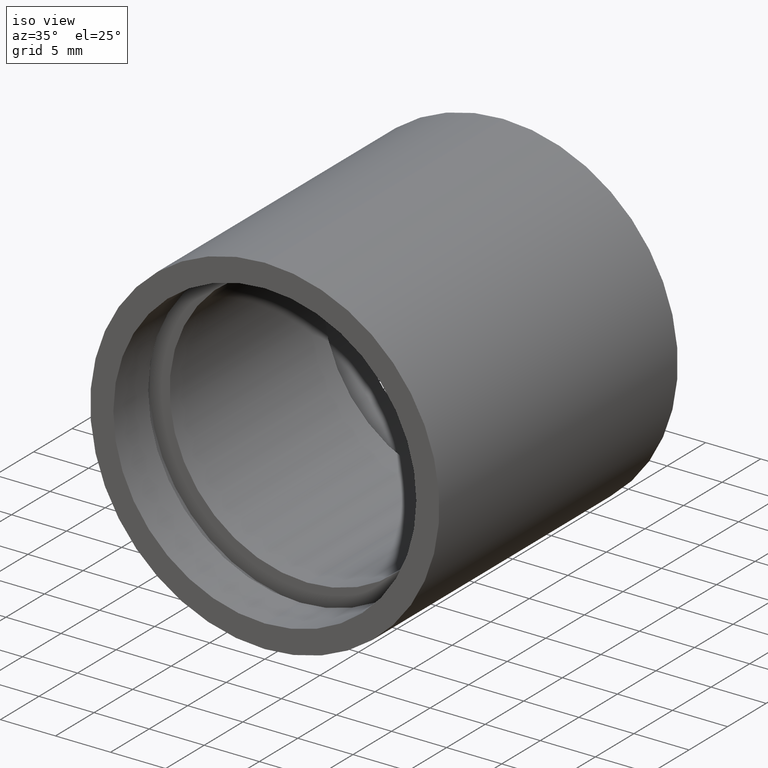
[diagram: clean part render]
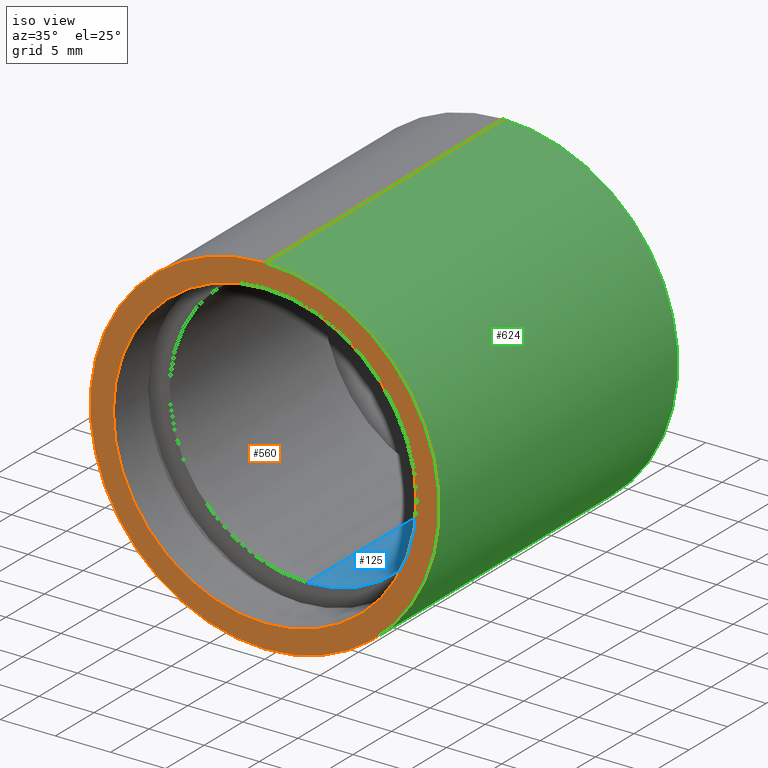
[diagram: same view with three faces highlighted in distinct colors, each labeled with its STEP entity id]
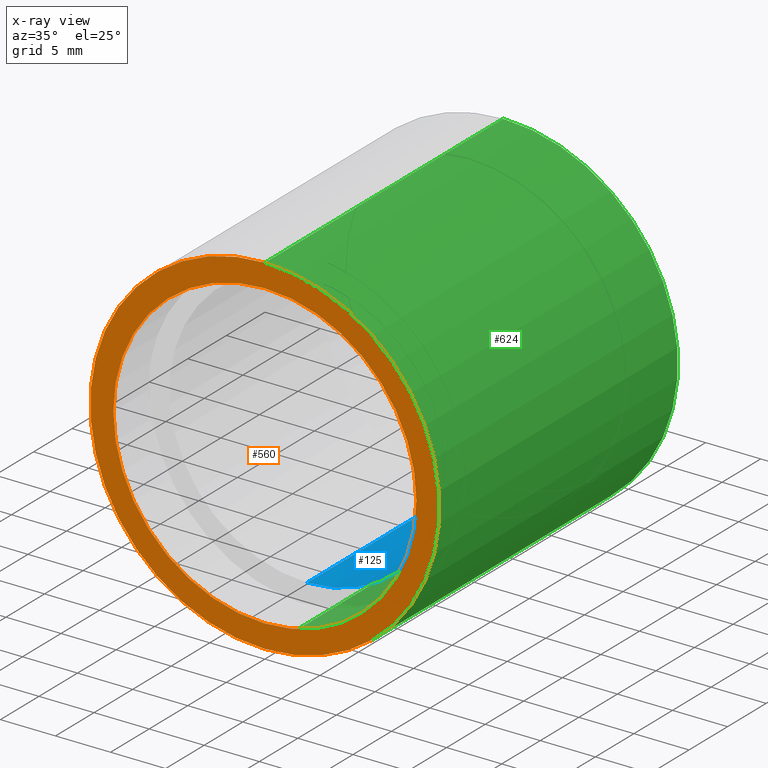
[diagram: x-ray of the same camera — body ghosted, the three highlighted faces saturated]
A machine part, iso view with three faces highlighted in distinct colors.
The next image is the same camera in x-ray (body ghosted, the three faces saturated) — at least one of them is partly hidden behind the body in this view.
Their STEP definitions:

[orange] entity #560 — the highlighted planar face has unit normal (-0, 1, 0).
#22 = CIRCLE ( 'NONE', #303, 15.85000000000002100 ) ;
#24 = EDGE_CURVE ( 'NONE', #71, #143, #395, .T. ) ;
#58 = CARTESIAN_POINT ( 'NONE',  ( 13.75000000000002100, -1.554524340841388500E-014, 0.0000000000000000000 ) ) ;
#71 = VERTEX_POINT ( 'NONE', #117 ) ;
#103 = AXIS2_PLACEMENT_3D ( 'NONE', #58, #243, #582 ) ;
#107 = CARTESIAN_POINT ( 'NONE',  ( 0.0000000000000000000, -2.775557561562891400E-014, 0.0000000000000000000 ) ) ;
#117 = CARTESIAN_POINT ( 'NONE',  ( 1.683889348827613200E-015, -2.775557561562891400E-014, -13.75000000000002100 ) ) ;
#137 = EDGE_CURVE ( 'NONE', #143, #71, #254, .T. ) ;
#143 = VERTEX_POINT ( 'NONE', #542 ) ;
#154 = DIRECTION ( 'NONE',  ( 0.0000000000000000000, 0.0000000000000000000, 1.000000000000000000 ) ) ;
#160 = DIRECTION ( 'NONE',  ( -0.0000000000000000000, 1.000000000000000000, -0.0000000000000000000 ) ) ;
#167 = AXIS2_PLACEMENT_3D ( 'NONE', #501, #217, #351 ) ;
#175 = CIRCLE ( 'NONE', #357, 15.85000000000002100 ) ;
#198 = AXIS2_PLACEMENT_3D ( 'NONE', #107, #444, #154 ) ;
#215 = DIRECTION ( 'NONE',  ( 0.0000000000000000000, 0.0000000000000000000, 1.000000000000000000 ) ) ;
#217 = DIRECTION ( 'NONE',  ( -0.0000000000000000000, 1.000000000000000000, -0.0000000000000000000 ) ) ;
#243 = DIRECTION ( 'NONE',  ( -0.0000000000000000000, 1.000000000000000000, 0.0000000000000000000 ) ) ;
#254 = CIRCLE ( 'NONE', #167, 13.75000000000002100 ) ;
#288 = EDGE_LOOP ( 'NONE', ( #536, #483 ) ) ;
#290 = EDGE_LOOP ( 'NONE', ( #310, #311 ) ) ;
#293 = FACE_OUTER_BOUND ( 'NONE', #290, .T. ) ;
#294 = PLANE ( 'NONE',  #103 ) ;
#303 = AXIS2_PLACEMENT_3D ( 'NONE', #394, #160, #215 ) ;
#310 = ORIENTED_EDGE ( 'NONE', *, *, #440, .F. ) ;
#311 = ORIENTED_EDGE ( 'NONE', *, *, #583, .F. ) ;
#335 = CARTESIAN_POINT ( 'NONE',  ( 0.0000000000000000000, -2.775557561562891400E-014, 15.85000000000002100 ) ) ;
#351 = DIRECTION ( 'NONE',  ( 0.0000000000000000000, 0.0000000000000000000, 1.000000000000000000 ) ) ;
#357 = AXIS2_PLACEMENT_3D ( 'NONE', #533, #505, #404 ) ;
#379 = FACE_BOUND ( 'NONE', #288, .T. ) ;
#394 = CARTESIAN_POINT ( 'NONE',  ( 0.0000000000000000000, -2.775557561562891400E-014, 0.0000000000000000000 ) ) ;
#395 = CIRCLE ( 'NONE', #198, 13.75000000000002100 ) ;
#404 = DIRECTION ( 'NONE',  ( 0.0000000000000000000, 0.0000000000000000000, 1.000000000000000000 ) ) ;
#440 = EDGE_CURVE ( 'NONE', #567, #571, #22, .T. ) ;
#444 = DIRECTION ( 'NONE',  ( -0.0000000000000000000, 1.000000000000000000, -0.0000000000000000000 ) ) ;
#483 = ORIENTED_EDGE ( 'NONE', *, *, #24, .T. ) ;
#501 = CARTESIAN_POINT ( 'NONE',  ( 0.0000000000000000000, -2.775557561562891400E-014, 0.0000000000000000000 ) ) ;
#505 = DIRECTION ( 'NONE',  ( -0.0000000000000000000, 1.000000000000000000, -0.0000000000000000000 ) ) ;
#533 = CARTESIAN_POINT ( 'NONE',  ( 0.0000000000000000000, -2.775557561562891400E-014, 0.0000000000000000000 ) ) ;
#536 = ORIENTED_EDGE ( 'NONE', *, *, #137, .T. ) ;
#542 = CARTESIAN_POINT ( 'NONE',  ( 0.0000000000000000000, -2.775557561562891400E-014, 13.75000000000002100 ) ) ;
#560 = ADVANCED_FACE ( 'NONE', ( #293, #379 ), #294, .F. ) ;
#564 = CARTESIAN_POINT ( 'NONE',  ( 1.941065176648557100E-015, -2.775557561562891400E-014, -15.85000000000002100 ) ) ;
#567 = VERTEX_POINT ( 'NONE', #335 ) ;
#571 = VERTEX_POINT ( 'NONE', #564 ) ;
#582 = DIRECTION ( 'NONE',  ( 0.0000000000000000000, 0.0000000000000000000, 1.000000000000000000 ) ) ;
#583 = EDGE_CURVE ( 'NONE', #571, #567, #175, .T. ) ;

[blue] entity #125 — the highlighted cylindrical surface (partial cylindrical patch) has radius 12.5 mm, axis along (-0, 1, -0).
#8 = CARTESIAN_POINT ( 'NONE',  ( 0.0000000000000000000, 5.499999999999976900, 12.50000000000002000 ) ) ;
#27 = CIRCLE ( 'NONE', #435, 12.50000000000002000 ) ;
#44 = AXIS2_PLACEMENT_3D ( 'NONE', #168, #312, #63 ) ;
#52 = ORIENTED_EDGE ( 'NONE', *, *, #481, .F. ) ;
#63 = DIRECTION ( 'NONE',  ( 0.0000000000000000000, 0.0000000000000000000, 1.000000000000000000 ) ) ;
#95 = LINE ( 'NONE', #614, #480 ) ;
#111 = VERTEX_POINT ( 'NONE', #599 ) ;
#125 = ADVANCED_FACE ( 'NONE', ( #466 ), #498, .F. ) ;
#139 = VERTEX_POINT ( 'NONE', #393 ) ;
#144 = LINE ( 'NONE', #156, #522 ) ;
#146 = EDGE_CURVE ( 'NONE', #550, #111, #526, .T. ) ;
#149 = DIRECTION ( 'NONE',  ( -0.0000000000000000000, 1.000000000000000000, -0.0000000000000000000 ) ) ;
#156 = CARTESIAN_POINT ( 'NONE',  ( 0.0000000000000000000, 161.3761669434274500, 12.50000000000002000 ) ) ;
#168 = CARTESIAN_POINT ( 'NONE',  ( 0.0000000000000000000, 5.499999999999976900, 0.0000000000000000000 ) ) ;
#192 = ORIENTED_EDGE ( 'NONE', *, *, #146, .F. ) ;
#201 = CARTESIAN_POINT ( 'NONE',  ( 0.0000000000000000000, 25.39999999999997700, 12.50000000000002000 ) ) ;
#301 = CARTESIAN_POINT ( 'NONE',  ( 0.0000000000000000000, 25.39999999999997700, 0.0000000000000000000 ) ) ;
#312 = DIRECTION ( 'NONE',  ( -0.0000000000000000000, 1.000000000000000000, -0.0000000000000000000 ) ) ;
#316 = DIRECTION ( 'NONE',  ( 0.0000000000000000000, 0.0000000000000000000, 1.000000000000000000 ) ) ;
#353 = EDGE_LOOP ( 'NONE', ( #52, #192, #539, #580 ) ) ;
#360 = AXIS2_PLACEMENT_3D ( 'NONE', #608, #402, #316 ) ;
#393 = CARTESIAN_POINT ( 'NONE',  ( 1.530808498934193900E-015, 25.39999999999997700, -12.50000000000002000 ) ) ;
#402 = DIRECTION ( 'NONE',  ( -0.0000000000000000000, 1.000000000000000000, -0.0000000000000000000 ) ) ;
#435 = AXIS2_PLACEMENT_3D ( 'NONE', #301, #149, #592 ) ;
#454 = EDGE_CURVE ( 'NONE', #550, #553, #144, .T. ) ;
#456 = DIRECTION ( 'NONE',  ( -0.0000000000000000000, 1.000000000000000000, -0.0000000000000000000 ) ) ;
#466 = FACE_OUTER_BOUND ( 'NONE', #353, .T. ) ;
#480 = VECTOR ( 'NONE', #518, 1000.000000000000000 ) ;
#481 = EDGE_CURVE ( 'NONE', #111, #139, #95, .T. ) ;
#498 = CYLINDRICAL_SURFACE ( 'NONE', #360, 12.50000000000002000 ) ;
#518 = DIRECTION ( 'NONE',  ( -0.0000000000000000000, 1.000000000000000000, -0.0000000000000000000 ) ) ;
#522 = VECTOR ( 'NONE', #456, 1000.000000000000000 ) ;
#526 = CIRCLE ( 'NONE', #44, 12.50000000000002000 ) ;
#535 = EDGE_CURVE ( 'NONE', #553, #139, #27, .T. ) ;
#539 = ORIENTED_EDGE ( 'NONE', *, *, #454, .T. ) ;
#550 = VERTEX_POINT ( 'NONE', #8 ) ;
#553 = VERTEX_POINT ( 'NONE', #201 ) ;
#580 = ORIENTED_EDGE ( 'NONE', *, *, #535, .T. ) ;
#592 = DIRECTION ( 'NONE',  ( 0.0000000000000000000, 0.0000000000000000000, 1.000000000000000000 ) ) ;
#599 = CARTESIAN_POINT ( 'NONE',  ( 1.530808498934193900E-015, 5.499999999999976900, -12.50000000000002000 ) ) ;
#608 = CARTESIAN_POINT ( 'NONE',  ( 0.0000000000000000000, 161.3761669434274500, 0.0000000000000000000 ) ) ;
#614 = CARTESIAN_POINT ( 'NONE',  ( 1.530808498934193900E-015, 161.3761669434274500, -12.50000000000002000 ) ) ;

[green] entity #624 — the highlighted cylindrical surface (partial cylindrical patch) has radius 15.85 mm, axis along (-0, 1, -0).
#22 = CIRCLE ( 'NONE', #303, 15.85000000000002100 ) ;
#26 = DIRECTION ( 'NONE',  ( -0.0000000000000000000, 1.000000000000000000, -0.0000000000000000000 ) ) ;
#72 = DIRECTION ( 'NONE',  ( -0.0000000000000000000, 1.000000000000000000, -0.0000000000000000000 ) ) ;
#83 = CARTESIAN_POINT ( 'NONE',  ( 1.941065176648557100E-015, 161.3761669434274500, -15.85000000000002100 ) ) ;
#87 = ORIENTED_EDGE ( 'NONE', *, *, #213, .T. ) ;
#88 = LINE ( 'NONE', #92, #537 ) ;
#92 = CARTESIAN_POINT ( 'NONE',  ( 0.0000000000000000000, 161.3761669434274500, 15.85000000000002100 ) ) ;
#97 = EDGE_CURVE ( 'NONE', #164, #530, #612, .T. ) ;
#113 = ORIENTED_EDGE ( 'NONE', *, *, #97, .F. ) ;
#121 = DIRECTION ( 'NONE',  ( 0.0000000000000000000, 0.0000000000000000000, 1.000000000000000000 ) ) ;
#148 = CARTESIAN_POINT ( 'NONE',  ( 0.0000000000000000000, 161.3761669434274500, 0.0000000000000000000 ) ) ;
#160 = DIRECTION ( 'NONE',  ( -0.0000000000000000000, 1.000000000000000000, -0.0000000000000000000 ) ) ;
#164 = VERTEX_POINT ( 'NONE', #463 ) ;
#211 = EDGE_LOOP ( 'NONE', ( #298, #87, #113, #218 ) ) ;
#213 = EDGE_CURVE ( 'NONE', #571, #530, #415, .T. ) ;
#215 = DIRECTION ( 'NONE',  ( 0.0000000000000000000, 0.0000000000000000000, 1.000000000000000000 ) ) ;
#218 = ORIENTED_EDGE ( 'NONE', *, *, #354, .F. ) ;
#246 = CARTESIAN_POINT ( 'NONE',  ( 1.941065176648557100E-015, 30.89999999999998400, -15.85000000000002100 ) ) ;
#258 = AXIS2_PLACEMENT_3D ( 'NONE', #148, #538, #447 ) ;
#284 = VECTOR ( 'NONE', #26, 1000.000000000000000 ) ;
#298 = ORIENTED_EDGE ( 'NONE', *, *, #440, .T. ) ;
#303 = AXIS2_PLACEMENT_3D ( 'NONE', #394, #160, #215 ) ;
#325 = CYLINDRICAL_SURFACE ( 'NONE', #258, 15.85000000000002100 ) ;
#335 = CARTESIAN_POINT ( 'NONE',  ( 0.0000000000000000000, -2.775557561562891400E-014, 15.85000000000002100 ) ) ;
#354 = EDGE_CURVE ( 'NONE', #567, #164, #88, .T. ) ;
#358 = CARTESIAN_POINT ( 'NONE',  ( 0.0000000000000000000, 30.89999999999998400, 0.0000000000000000000 ) ) ;
#378 = AXIS2_PLACEMENT_3D ( 'NONE', #358, #72, #121 ) ;
#394 = CARTESIAN_POINT ( 'NONE',  ( 0.0000000000000000000, -2.775557561562891400E-014, 0.0000000000000000000 ) ) ;
#415 = LINE ( 'NONE', #83, #284 ) ;
#431 = FACE_OUTER_BOUND ( 'NONE', #211, .T. ) ;
#440 = EDGE_CURVE ( 'NONE', #567, #571, #22, .T. ) ;
#447 = DIRECTION ( 'NONE',  ( 0.0000000000000000000, 0.0000000000000000000, 1.000000000000000000 ) ) ;
#463 = CARTESIAN_POINT ( 'NONE',  ( 0.0000000000000000000, 30.89999999999998400, 15.85000000000002100 ) ) ;
#475 = DIRECTION ( 'NONE',  ( -0.0000000000000000000, 1.000000000000000000, -0.0000000000000000000 ) ) ;
#530 = VERTEX_POINT ( 'NONE', #246 ) ;
#537 = VECTOR ( 'NONE', #475, 1000.000000000000000 ) ;
#538 = DIRECTION ( 'NONE',  ( -0.0000000000000000000, 1.000000000000000000, -0.0000000000000000000 ) ) ;
#564 = CARTESIAN_POINT ( 'NONE',  ( 1.941065176648557100E-015, -2.775557561562891400E-014, -15.85000000000002100 ) ) ;
#567 = VERTEX_POINT ( 'NONE', #335 ) ;
#571 = VERTEX_POINT ( 'NONE', #564 ) ;
#612 = CIRCLE ( 'NONE', #378, 15.85000000000002100 ) ;
#624 = ADVANCED_FACE ( 'NONE', ( #431 ), #325, .T. ) ;